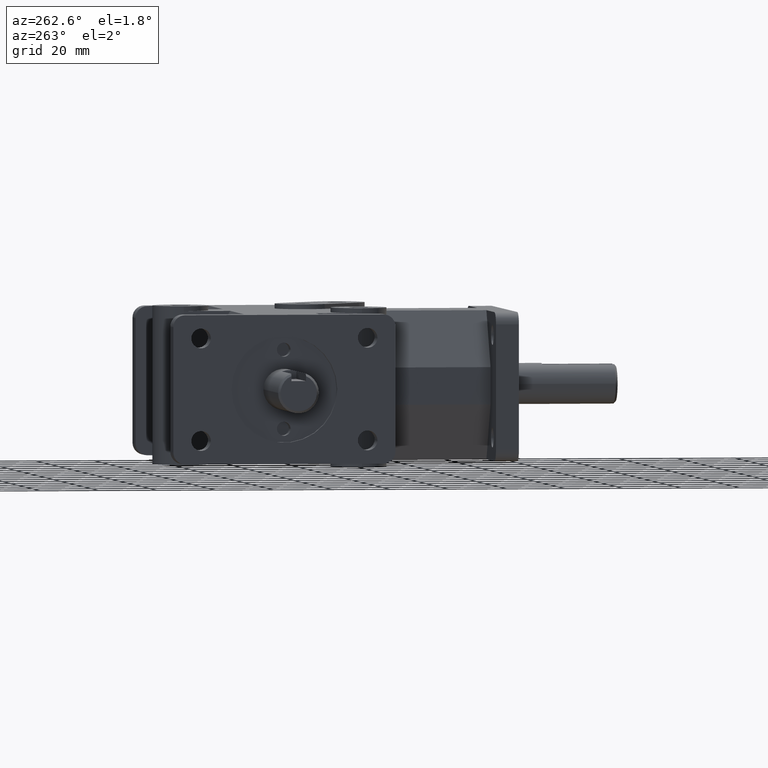
[diagram: clean part render]
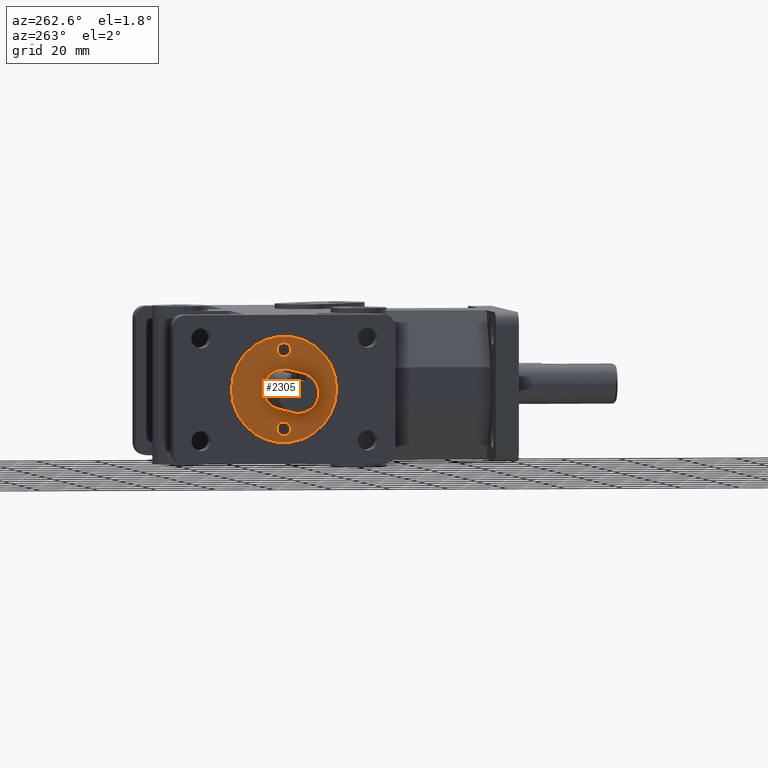
[diagram: same view with one face highlighted and labeled with its STEP entity id]
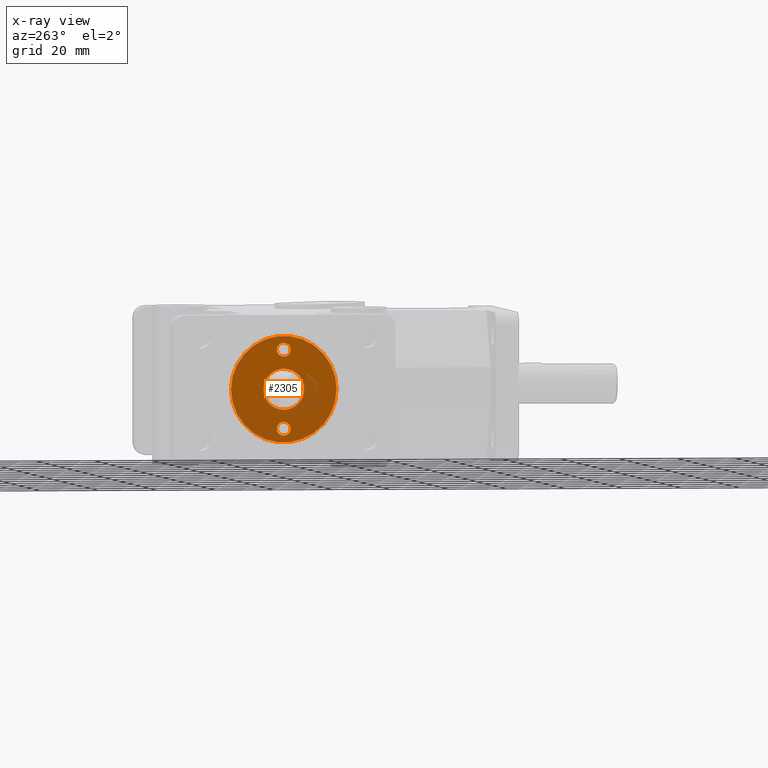
[diagram: x-ray of the same camera — body ghosted, the highlighted face saturated]
A machine part, auxiliary view. The second image highlights one B-rep face of the part: STEP entity #2305.
The next image is the same camera in x-ray: the body ghosted, the highlighted face saturated — about 8% of this face is hidden behind the body in this view.
In plain terms, the highlighted planar face has unit normal (1, 0, 0).
Its self-contained STEP definition (entity closure, byte-faithful):
#15=FACE_BOUND('',#316,.T.);
#16=FACE_BOUND('',#317,.T.);
#17=FACE_BOUND('',#318,.T.);
#90=PLANE('',#2481);
#186=FACE_OUTER_BOUND('',#315,.T.);
#315=EDGE_LOOP('',(#1704));
#316=EDGE_LOOP('',(#1705));
#317=EDGE_LOOP('',(#1706));
#318=EDGE_LOOP('',(#1707));
#900=CIRCLE('',#2421,2.3749);
#902=CIRCLE('',#2425,2.3749);
#909=CIRCLE('',#2438,18.1356);
#926=CIRCLE('',#2476,7.);
#1006=VERTEX_POINT('',#3357);
#1008=VERTEX_POINT('',#3364);
#1015=VERTEX_POINT('',#3387);
#1055=VERTEX_POINT('',#3518);
#1229=EDGE_CURVE('',#1006,#1006,#900,.T.);
#1232=EDGE_CURVE('',#1008,#1008,#902,.T.);
#1243=EDGE_CURVE('',#1015,#1015,#909,.T.);
#1301=EDGE_CURVE('',#1055,#1055,#926,.T.);
#1704=ORIENTED_EDGE('',*,*,#1243,.T.);
#1705=ORIENTED_EDGE('',*,*,#1301,.T.);
#1706=ORIENTED_EDGE('',*,*,#1229,.T.);
#1707=ORIENTED_EDGE('',*,*,#1232,.T.);
#2305=ADVANCED_FACE('',(#186,#15,#16,#17),#90,.F.);
#2421=AXIS2_PLACEMENT_3D('',#3358,#2669,#2670);
#2425=AXIS2_PLACEMENT_3D('',#3365,#2678,#2679);
#2438=AXIS2_PLACEMENT_3D('',#3389,#2708,#2709);
#2476=AXIS2_PLACEMENT_3D('',#3520,#2819,#2820);
#2481=AXIS2_PLACEMENT_3D('',#3525,#2829,#2830);
#2669=DIRECTION('center_axis',(1.,0.,0.));
#2670=DIRECTION('ref_axis',(0.,1.,0.));
#2678=DIRECTION('center_axis',(1.,0.,0.));
#2679=DIRECTION('ref_axis',(0.,1.,0.));
#2708=DIRECTION('center_axis',(-1.,0.,0.));
#2709=DIRECTION('ref_axis',(0.,-1.,0.));
#2819=DIRECTION('center_axis',(1.,0.,0.));
#2820=DIRECTION('ref_axis',(0.,-1.,0.));
#2829=DIRECTION('center_axis',(1.,0.,0.));
#2830=DIRECTION('ref_axis',(0.,-1.,0.));
#3357=CARTESIAN_POINT('',(-52.451,80.1751,13.462));
#3358=CARTESIAN_POINT('Origin',(-52.451,82.55,13.462));
#3364=CARTESIAN_POINT('',(-52.451,80.1751,-13.462));
#3365=CARTESIAN_POINT('Origin',(-52.451,82.55,-13.462));
#3387=CARTESIAN_POINT('',(-52.451,100.6856,2.22097044906167E-15));
#3389=CARTESIAN_POINT('Origin',(-52.451,82.55,0.));
#3518=CARTESIAN_POINT('',(-52.451,89.55,-8.57252759403147E-16));
#3520=CARTESIAN_POINT('Origin',(-52.451,82.55,0.));
#3525=CARTESIAN_POINT('Origin',(-52.451,83.9239090909091,-2.08319265799052E-16));